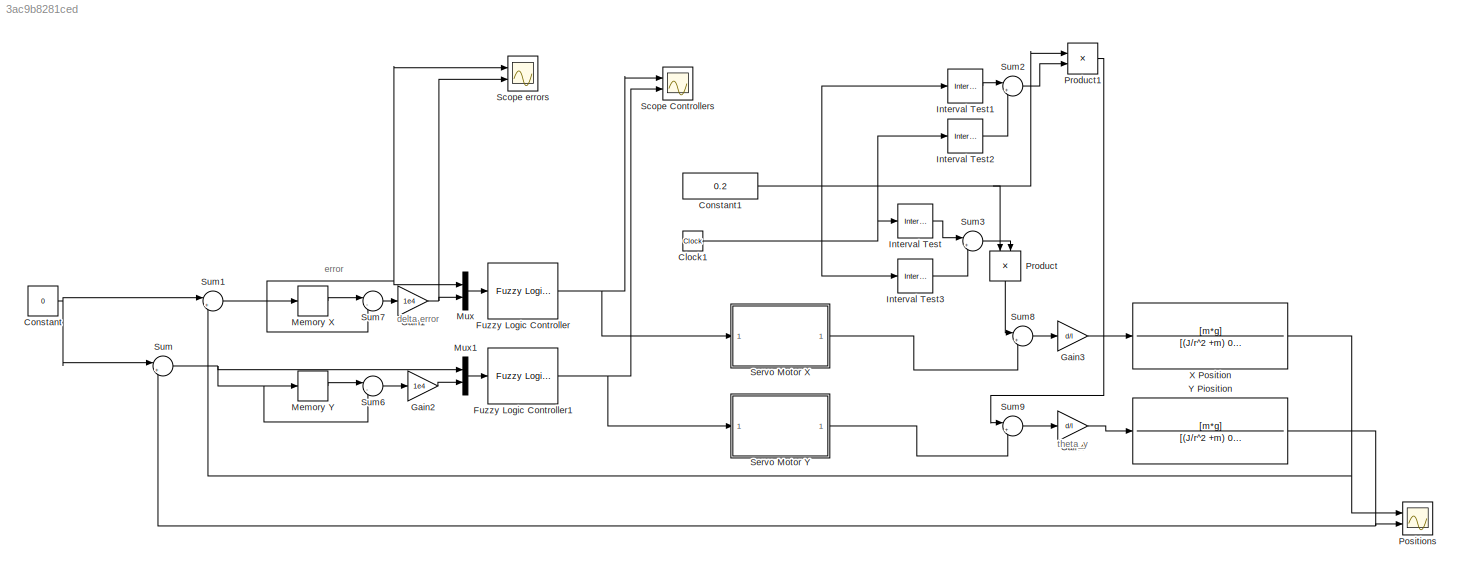
MODEL slx_3ac9b8281ced
KIND model
CONFIG AbsTol = auto
CONFIG EnableMultiTasking = off
CONFIG FixedStep = 1e-3
CONFIG InitFcn = Param
CONFIG MaxStep = auto
CONFIG MinStep = auto
CONFIG RelTol = 1e-1
CONFIG SampleTimeConstraint = Unconstrained
CONFIG SolverName = FixedStepAuto
CONFIG StartTime = 0.0
CONFIG StopTime = 20
BLOCK [Clock] Clock1
  Decimation = 1
BLOCK [Constant] Constant
  Value = 0
BLOCK [Constant] Constant1
  Value = 0.2
BLOCK [Reference] Fuzzy Logic Controller  REF=fuzblock/Fuzzy Logic   (lib defined in mdl_858b3b3e7478)
Controller
  Ports = [1, 1]
  SourceBlock = fuzblock/Fuzzy Logic \nController
  SourceProductBaseCode = FL
  SourceType = Fuzzy Inference System
BLOCK [Reference] Fuzzy Logic Controller1  REF=fuzblock/Fuzzy Logic   (lib defined in mdl_858b3b3e7478)
Controller
  Ports = [1, 1]
  SourceBlock = fuzblock/Fuzzy Logic \nController
  SourceProductBaseCode = FL
  SourceType = Fuzzy Inference System
BLOCK [Gain] Gain1
  Gain = 1e4
BLOCK [Gain] Gain2
  Gain = 1e4
BLOCK [Gain] Gain3
  Gain = d/l
BLOCK [Gain] Gain4
  Gain = d/l
BLOCK [Reference] Interval Test  REF=simulink/Logic and Bit
Operations/Interval Test
  Ports = [1, 1]
  SourceBlock = simulink/Logic and Bit\nOperations/Interval Test
  SourceProductBaseCode = SL
  SourceType = Interval Test
BLOCK [Reference] Interval Test1  REF=simulink/Logic and Bit
Operations/Interval Test
  Ports = [1, 1]
  SourceBlock = simulink/Logic and Bit\nOperations/Interval Test
  SourceProductBaseCode = SL
  SourceType = Interval Test
BLOCK [Reference] Interval Test2  REF=simulink/Logic and Bit
Operations/Interval Test
  Ports = [1, 1]
  SourceBlock = simulink/Logic and Bit\nOperations/Interval Test
  SourceProductBaseCode = SL
  SourceType = Interval Test
BLOCK [Reference] Interval Test3  REF=simulink/Logic and Bit
Operations/Interval Test
  Ports = [1, 1]
  SourceBlock = simulink/Logic and Bit\nOperations/Interval Test
  SourceProductBaseCode = SL
  SourceType = Interval Test
BLOCK [Memory] Memory X
BLOCK [Memory] Memory Y
BLOCK [Mux] Mux
  DisplayOption = bar
  Inputs = 2
  Ports = [2, 1]
BLOCK [Mux] Mux1
  DisplayOption = bar
  Inputs = 2
  Ports = [2, 1]
BLOCK [Scope] Positions
  Floating = off
  NumInputPorts = 2
  Ports = [2]
  ScopeSpecificationString = Simulink.scopes.TimeScopeBlockCfg('CurrentConfiguration', extmgr.ConfigurationSet(extmgr.Configuration('Core','General UI',true),extmgr.Configuration('Core','Source UI',true),extmgr.Configuration('Sources','WiredSimulink',true,'DataLoggingVariableName','ScopeData4'),extmgr.Configuration('Visuals','Time Domain',true,'SerializedDisplays',{struct('MinYLimReal','-0.02894','MaxYLimReal','0.04954','YLab...<+1454ch>
BLOCK [Product] Product
  NameLocation = left
  Ports = [2, 1]
BLOCK [Product] Product1
  Ports = [2, 1]
BLOCK [Scope] Scope Controllers
  Floating = off
  NumInputPorts = 2
  Ports = [2]
  ScopeSpecificationString = Simulink.scopes.TimeScopeBlockCfg('CurrentConfiguration', extmgr.ConfigurationSet(extmgr.Configuration('Core','General UI',true),extmgr.Configuration('Core','Source UI',true),extmgr.Configuration('Sources','WiredSimulink',true,'DataLoggingVariableName','ScopeData1'),extmgr.Configuration('Visuals','Time Domain',true,'SerializedDisplays',{struct('MinYLimReal','-0.4','MaxYLimReal','0.4','YLabelReal',...<+1485ch>
BLOCK [Scope] Scope errors
  Floating = off
  NumInputPorts = 2
  Ports = [2]
  ScopeSpecificationString = Simulink.scopes.TimeScopeBlockCfg('CurrentConfiguration', extmgr.ConfigurationSet(extmgr.Configuration('Core','General UI',true),extmgr.Configuration('Core','Source UI',true),extmgr.Configuration('Sources','WiredSimulink',true,'DataLoggingVariableName','ScopeData2'),extmgr.Configuration('Visuals','Time Domain',true,'SerializedDisplays',{struct('MinYLimReal','-0.06161','MaxYLimReal','0.0272','YLabe...<+1486ch>
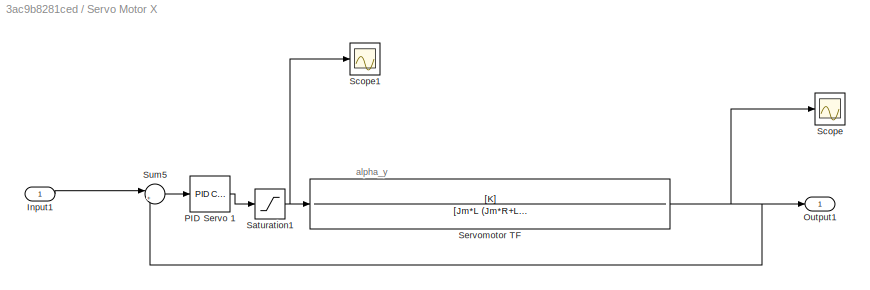
BLOCK [SubSystem] Servo Motor X
  Ports = [1, 1]
  RequestExecContextInheritance = off
BLOCK [Inport] Servo Motor X/Input1
BLOCK [Outport] Servo Motor X/Output1
BLOCK [Reference] Servo Motor X/PID Servo 1  REF=pid_lib/PID Controller
  Ports = [1, 1]
  SourceBlock = pid_lib/PID Controller
  SourceProductBaseCode = SL
  SourceType = PID 1dof
BLOCK [Saturate] Servo Motor X/Saturation1
  LowerLimit = -7.8
  UpperLimit = 7.8
BLOCK [Scope] Servo Motor X/Scope
  Floating = off
  NumInputPorts = 1
  Ports = [1]
  ScopeSpecificationString = Simulink.scopes.TimeScopeBlockCfg('CurrentConfiguration', extmgr.ConfigurationSet(extmgr.Configuration('Core','General UI',true),extmgr.Configuration('Core','Source UI',true),extmgr.Configuration('Sources','WiredSimulink',true,'DataLoggingVariableName','ScopeData1'),extmgr.Configuration('Visuals','Time Domain',true),extmgr.Configuration('Tools','Plot Navigation',true),extmgr.Configuration('Tools',...<+40ch>
BLOCK [Scope] Servo Motor X/Scope1
  Floating = off
  NumInputPorts = 1
  Ports = [1]
  ScopeSpecificationString = Simulink.scopes.TimeScopeBlockCfg('CurrentConfiguration', extmgr.ConfigurationSet(extmgr.Configuration('Core','General UI',true),extmgr.Configuration('Core','Source UI',true),extmgr.Configuration('Sources','WiredSimulink',true,'DataLoggingVariableName','ScopeData1'),extmgr.Configuration('Visuals','Time Domain',true,'SerializedDisplays',{struct('MinYLimReal','-9.75','MaxYLimReal','9.75','YLabelReal...<+1429ch>
BLOCK [TransferFcn] Servo Motor X/Servomotor TF
  Denominator = [Jm*L (Jm*R+L*c) (R*c+K^2) 0]
  Numerator = [K]
BLOCK [Sum] Servo Motor X/Sum5
  Inputs = |+-
  Ports = [2, 1]
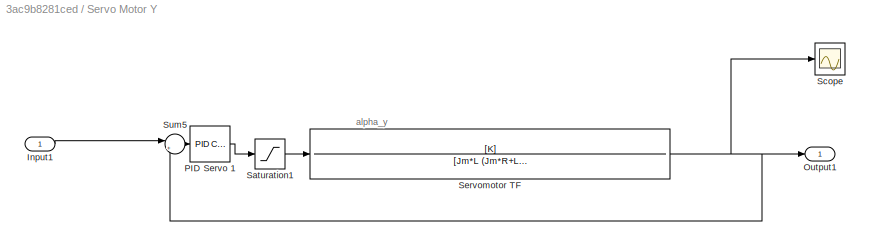
BLOCK [SubSystem] Servo Motor Y
  Ports = [1, 1]
  RequestExecContextInheritance = off
BLOCK [Inport] Servo Motor Y/Input1
BLOCK [Outport] Servo Motor Y/Output1
BLOCK [Reference] Servo Motor Y/PID Servo 1  REF=pid_lib/PID Controller
  Ports = [1, 1]
  SourceBlock = pid_lib/PID Controller
  SourceProductBaseCode = SL
  SourceType = PID 1dof
BLOCK [Saturate] Servo Motor Y/Saturation1
  LowerLimit = -7.8
  UpperLimit = 7.8
BLOCK [Scope] Servo Motor Y/Scope
  Floating = off
  NumInputPorts = 1
  Ports = [1]
  ScopeSpecificationString = Simulink.scopes.TimeScopeBlockCfg('CurrentConfiguration', extmgr.ConfigurationSet(extmgr.Configuration('Core','General UI',true),extmgr.Configuration('Core','Source UI',true),extmgr.Configuration('Sources','WiredSimulink',true,'DataLoggingVariableName','ScopeData1'),extmgr.Configuration('Visuals','Time Domain',true),extmgr.Configuration('Tools','Plot Navigation',true),extmgr.Configuration('Tools',...<+40ch>
BLOCK [TransferFcn] Servo Motor Y/Servomotor TF
  Denominator = [Jm*L (Jm*R+L*c) (R*c+K^2) 0]
  Numerator = [K]
BLOCK [Sum] Servo Motor Y/Sum5
  Inputs = |+-
  Ports = [2, 1]
BLOCK [Sum] Sum
  Inputs = |+-
  Ports = [2, 1]
BLOCK [Sum] Sum1
  Inputs = |+-
  Ports = [2, 1]
BLOCK [Sum] Sum2
  Inputs = |++
  Ports = [2, 1]
BLOCK [Sum] Sum3
  Inputs = |++
  Ports = [2, 1]
BLOCK [Sum] Sum6
  Inputs = |-+
  NameLocation = top
  Ports = [2, 1]
BLOCK [Sum] Sum7
  Inputs = |-+
  NameLocation = top
  Ports = [2, 1]
BLOCK [Sum] Sum8
  Inputs = |++
  NameLocation = top
  Ports = [2, 1]
BLOCK [Sum] Sum9
  Inputs = |++
  Ports = [2, 1]
BLOCK [TransferFcn] X Position
  Denominator = [(J/r^2 +m) 0 0]
  Numerator = [m*g]
BLOCK [TransferFcn] Y Piosition
  Denominator = [(J/r^2 +m) 0 0]
  Numerator = [m*g]
ANNOTATION (root): error
ANNOTATION (root): delta error
ANNOTATION (root): theta_y
ANNOTATION Servo Motor X: alpha_y
ANNOTATION Servo Motor Y: alpha_y
NET Clock1:1 -> Interval Test1:1, Interval Test2:1, Interval Test3:1, Interval Test:1
NET Constant1:1 -> Product1:1, Product:1
NET Constant:1 -> Sum1:1, Sum:1
NET Fuzzy Logic Controller1:1 -> Scope Controllers:2, Servo Motor Y:1
NET Fuzzy Logic Controller:1 -> Scope Controllers:1, Servo Motor X:1
NET Gain1:1 -> Mux:2, Scope errors:2
LINE Gain2:1 -> Mux1:2
LINE Gain3:1 -> X Position:1
LINE Gain4:1 -> Y Piosition:1
LINE Interval Test1:1 -> Sum2:1
LINE Interval Test2:1 -> Sum2:2
LINE Interval Test3:1 -> Sum3:2
LINE Interval Test:1 -> Sum3:1
LINE Memory X:1 -> Sum7:1
LINE Memory Y:1 -> Sum6:1
LINE Mux1:1 -> Fuzzy Logic Controller1:1
LINE Mux:1 -> Fuzzy Logic Controller:1
LINE Product1:1 -> Sum9:1
LINE Product:1 -> Sum8:1
LINE Servo Motor X/Input1:1 -> Servo Motor X/Sum5:1
LINE Servo Motor X/PID Servo 1:1 -> Servo Motor X/Saturation1:1
NET Servo Motor X/Saturation1:1 -> Servo Motor X/Scope1:1, Servo Motor X/Servomotor TF:1
NET Servo Motor X/Servomotor TF:1 -> Servo Motor X/Output1:1, Servo Motor X/Scope:1, Servo Motor X/Sum5:2
LINE Servo Motor X/Sum5:1 -> Servo Motor X/PID Servo 1:1
LINE Servo Motor X:1 -> Sum8:2
LINE Servo Motor Y/Input1:1 -> Servo Motor Y/Sum5:1
LINE Servo Motor Y/PID Servo 1:1 -> Servo Motor Y/Saturation1:1
LINE Servo Motor Y/Saturation1:1 -> Servo Motor Y/Servomotor TF:1
NET Servo Motor Y/Servomotor TF:1 -> Servo Motor Y/Output1:1, Servo Motor Y/Scope:1, Servo Motor Y/Sum5:2
LINE Servo Motor Y/Sum5:1 -> Servo Motor Y/PID Servo 1:1
LINE Servo Motor Y:1 -> Sum9:2
NET Sum1:1 -> Memory X:1, Mux:1, Scope errors:1, Sum7:2
LINE Sum2:1 -> Product1:2
LINE Sum3:1 -> Product:2
LINE Sum6:1 -> Gain2:1
LINE Sum7:1 -> Gain1:1
LINE Sum8:1 -> Gain3:1
LINE Sum9:1 -> Gain4:1
NET Sum:1 -> Memory Y:1, Mux1:1, Sum6:2
NET X Position:1 -> Positions:1, Sum1:2
NET Y Piosition:1 -> Positions:2, Sum:2
note: NET lines group one-source signal fan-out (src -> all destinations, sorted); 1:1 wires keep LINE
